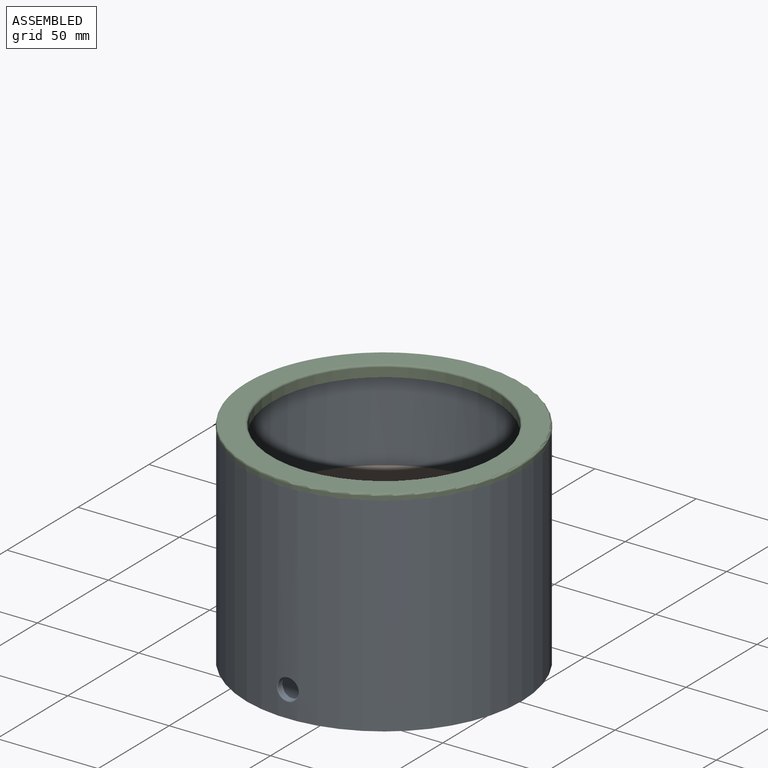
[diagram: assembled view]
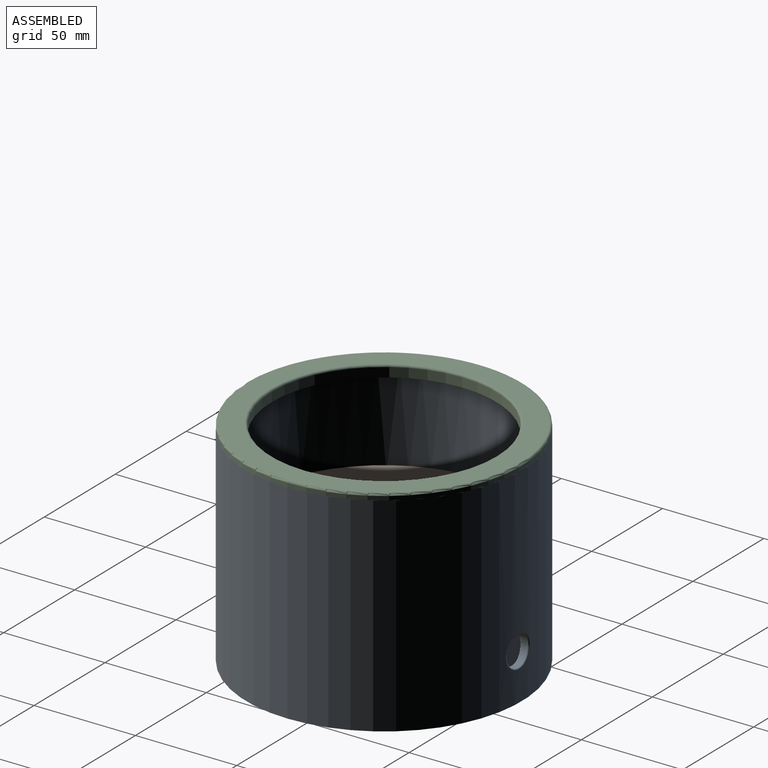
[diagram: assembled view, second angle]
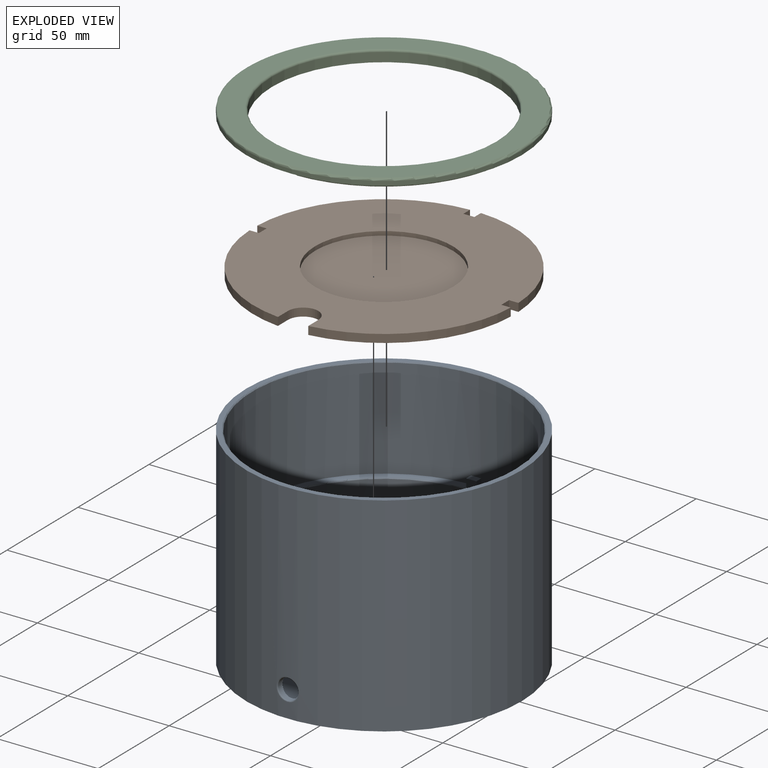
[diagram: exploded view]
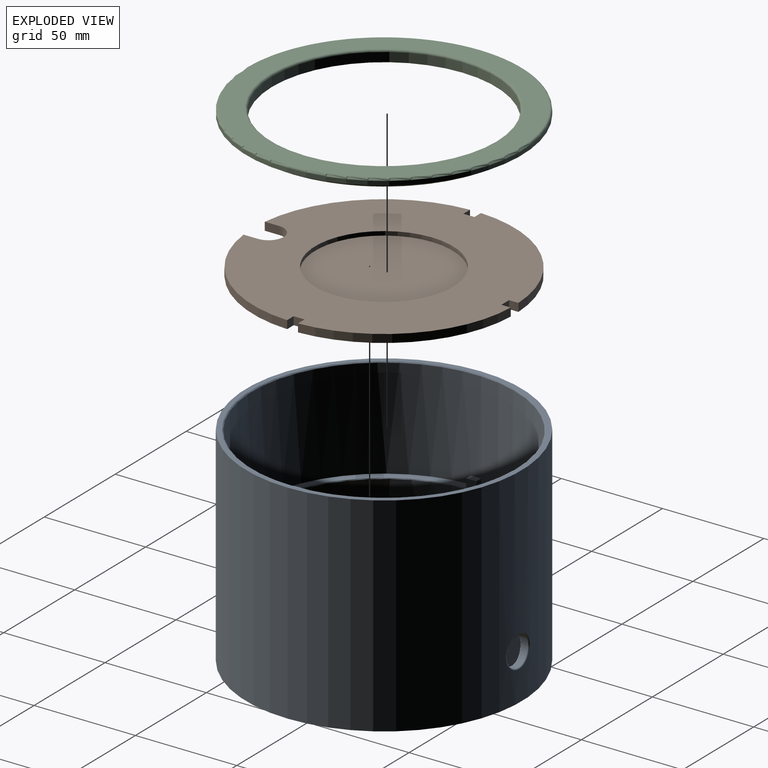
[diagram: exploded view, second angle]
ASSEMBLY  parts=3 mates=3
PART A: 53 faces, bbox 141.8x141.8x103 mm
  f0: plane 62.45x62.45mm, normal (0,0,1), area 326.4mm2, adj f5,f26,f30,f52
  f1: plane 62.45x62.45mm, normal (0,0,1), area 326.4mm2, adj f5,f28,f34,f52
  f2: plane 129.9x62.5mm, normal (0,0,1), area 670.1mm2, adj f5,f31,f36,f52
  f3: cylinder r=68mm len=136mm, axis (0,0,-1), area 43706.8mm2, adj f6,f7,f40,f42
  f4: cone r=65mm half-angle=4.6deg, axis (0,0,-1), area 19351.7mm2, adj f8,f41,f43,f52
  f5: cylinder r=65mm len=130mm, axis (0,0,-1), area 20156.1mm2, adj f0,f1,f2,f26,f28,f29,f30,f31
  f6: plane 136x136mm, normal (0,0,1), area 1048.5mm2, adj f3,f38
  f7: plane 136x136mm, normal (0,0,-1), area 14526.7mm2, adj f3
  f8: plane 130x130mm, normal (0,0,1), area 12857.8mm2, adj f4,f10,f13,f18,f21
  f9: cylinder r=3.75mm len=7.5mm, axis (0,0,-1), area 106mm2, adj f12,f51
  f10: cylinder r=5.75mm len=11.5mm, axis (0,0,-1), area 162.6mm2, adj f8,f50
  f11: plane 10.5x10.5mm, normal (0,0,1), area 29.8mm2, adj f50,f51
  f12: plane 7.5x7.5mm, normal (0,0,1), area 44.2mm2, adj f9
  f13: cylinder r=5.75mm len=11.5mm, axis (0,0,-1), area 162.6mm2, adj f8,f48
  f14: cylinder r=3.75mm len=7.5mm, axis (0,0,-1), area 106mm2, adj f16,f49
  f15: plane 10.5x10.5mm, normal (0,0,1), area 29.8mm2, adj f48,f49
  f16: plane 7.5x7.5mm, normal (0,0,1), area 44.2mm2, adj f14
  f17: cylinder r=3.75mm len=7.5mm, axis (0,0,-1), area 106mm2, adj f20,f47
  f18: cylinder r=5.75mm len=11.5mm, axis (0,0,-1), area 162.6mm2, adj f8,f46
  f19: plane 10.5x10.5mm, normal (0,0,1), area 29.8mm2, adj f46,f47
  f20: plane 7.5x7.5mm, normal (0,0,1), area 44.2mm2, adj f17
  f21: cylinder r=5.75mm len=11.5mm, axis (0,0,-1), area 162.6mm2, adj f8,f45
  f22: cylinder r=3.75mm len=7.5mm, axis (0,0,-1), area 106mm2, adj f24,f44
  f23: plane 10.5x10.5mm, normal (0,0,1), area 29.8mm2, adj f44,f45
  f24: plane 7.5x7.5mm, normal (0,0,1), area 44.2mm2, adj f22
  f25: cylinder r=5.03mm len=10.05mm, axis (0,1,0), area 88.5mm2, adj f42,f43
  f26: plane 4x3.46mm, normal (-1,0,0), area 13.8mm2, adj f0,f5,f27,f29
  f27: cylinder r=61.54mm len=5mm, axis (0,0,-1), area 20mm2, adj f26,f28,f29,f52
  f28: plane 4x3.46mm, normal (1,0,0), area 13.8mm2, adj f1,f5,f27,f29
  f29: plane 5x3.51mm, normal (0,0,1), area 17.3mm2, adj f5,f26,f27,f28
  f30: plane 4x3.46mm, normal (0,1,0), area 13.8mm2, adj f0,f5,f32,f33
  f31: plane 4x3.46mm, normal (0,-1,0), area 13.8mm2, adj f2,f5,f32,f33
  f32: cylinder r=61.54mm len=5mm, axis (0,0,-1), area 20mm2, adj f30,f31,f33,f52
  f33: plane 5x3.51mm, normal (0,0,1), area 17.3mm2, adj f5,f30,f31,f32
  f34: plane 4x3.46mm, normal (0,1,0), area 13.8mm2, adj f1,f5,f35,f37
  f35: cylinder r=61.54mm len=5mm, axis (0,0,-1), area 20mm2, adj f34,f36,f37,f52
  f36: plane 4x3.46mm, normal (0,-1,0), area 13.8mm2, adj f2,f5,f35,f37
  f37: plane 5x3.51mm, normal (0,0,1), area 17.3mm2, adj f5,f34,f35,f36
  f38: torus R=65.5mm, axis (0,0,1), area 321.7mm2, adj f5,f6
  f39: cylinder r=7.5mm len=15mm, axis (0,-1,0), area 170.3mm2, adj f40,f41
  f40: bspline ~16.13x16.02mm, area 39.4mm2, adj f3,f39
  f41: bspline ~16.02x15.89mm, area 36.4mm2, adj f4,f39
  f42: bspline ~11.15x11.05mm, area 26.4mm2, adj f3,f25
  f43: bspline ~11.06x10.98mm, area 25mm2, adj f4,f25
  f44: torus R=4.25mm, axis (0,0,1), area 19.4mm2, adj f22,f23
  f45: torus R=5.25mm, axis (0,0,1), area 27.5mm2, adj f21,f23
  f46: torus R=5.25mm, axis (0,0,1), area 27.5mm2, adj f18,f19
  f47: torus R=4.25mm, axis (0,0,1), area 19.4mm2, adj f17,f19
  f48: torus R=5.25mm, axis (0,0,1), area 27.5mm2, adj f13,f15
  f49: torus R=4.25mm, axis (0,0,1), area 19.4mm2, adj f14,f15
  f50: torus R=5.25mm, axis (0,0,1), area 27.5mm2, adj f10,f11
  f51: torus R=4.25mm, axis (0,0,1), area 19.4mm2, adj f9,f11
  f52: torus R=61.54mm, axis (0,0,-1), area 317.4mm2, adj f0,f1,f2,f4,f27,f32,f35
PART B: 20 faces, bbox 128.9x128.5x4 mm
  f0: cylinder r=64.5mm len=61.36mm, axis (0,0,-1), area 364.4mm2, adj f4,f5,f14,f17
  f1: cylinder r=64.5mm len=61.74mm, axis (0,0,-1), area 383.7mm2, adj f4,f5,f10,f15
  f2: cylinder r=64.5mm len=61.36mm, axis (0,0,-1), area 364.4mm2, adj f4,f5,f11,f19
  f3: cylinder r=64.5mm len=61.74mm, axis (0,0,-1), area 383.7mm2, adj f4,f5,f8,f13
  f4: plane 128.89x128.51mm, normal (0,0,-1), area 12795.3mm2, adj f0,f1,f2,f3,f8,f9,f10,f11
  f5: plane 128.89x128.51mm, normal (0,0,1), area 9163.6mm2, adj f0,f1,f2,f3,f6,f8,f9,f10
  f6: cylinder r=34mm len=68mm, axis (0,0,-1), area 427.3mm2, adj f5,f7
  f7: plane 68x68mm, normal (0,0,1), area 3631.7mm2, adj f6
  f8: plane 4.64x4mm, normal (-1,0,0), area 18.6mm2, adj f3,f4,f5,f9
  f9: plane 5.4x4mm, normal (0,-1,0), area 21.6mm2, adj f4,f5,f8,f10
  f10: plane 4.64x4mm, normal (1,0,0), area 18.6mm2, adj f1,f4,f5,f9
  f11: plane 4.64x4mm, normal (0,-1,0), area 18.6mm2, adj f2,f4,f5,f12
  f12: plane 5.4x4mm, normal (1,0,0), area 21.6mm2, adj f4,f5,f11,f13
  f13: plane 4.64x4mm, normal (0,1,0), area 18.6mm2, adj f3,f4,f5,f12
  f14: plane 4.64x4mm, normal (0,-1,0), area 18.6mm2, adj f0,f4,f5,f16
  f15: plane 4.64x4mm, normal (0,1,0), area 18.6mm2, adj f1,f4,f5,f16
  f16: plane 5.4x4mm, normal (-1,0,0), area 21.6mm2, adj f4,f5,f14,f15
  f17: plane 7.06x4mm, normal (1,0,0), area 28.2mm2, adj f0,f4,f5,f18
  f18: cylinder r=7.5mm len=15mm, axis (0,0,1), area 94.2mm2, adj f4,f5,f17,f19
  f19: plane 7.06x4mm, normal (-1,0,0), area 28.2mm2, adj f2,f4,f5,f18
PART C: 9 faces, bbox 147.2x147.2x5.5 mm
  f0: cylinder r=55.25mm len=110.5mm, axis (0,0,1), area 1562.2mm2, adj f5,f7
  f1: cylinder r=68mm len=136mm, axis (0,0,1), area 854.5mm2, adj f2,f8
  f2: plane 136x136mm, normal (0,0,-1), area 1456.9mm2, adj f1,f4
  f3: plane 134x134mm, normal (0,0,1), area 4162.4mm2, adj f7,f8
  f4: cylinder r=64.5mm len=129mm, axis (0,0,1), area 607.9mm2, adj f2,f6
  f5: plane 127x127mm, normal (0,0,-1), area 3077.8mm2, adj f0,f6
  f6: torus R=63.5mm, axis (0,0,-1), area 633mm2, adj f4,f5
  f7: torus R=56.25mm, axis (0,0,1), area 548.9mm2, adj f0,f3
  f8: torus R=67mm, axis (0,0,1), area 667.5mm2, adj f1,f3
PLACE A t=(39.37,-54.8,-30.58)mm
PLACE B rot(axis=(0,0,1),180deg) t=(39.37,-54.8,19.42)mm
PLACE C t=(39.37,-54.8,72.42)mm
MATE planar C.f1 <-> A.f3  axis (0,0,-1) through (39.37,-54.8,69.42)mm
MATE cylindrical B.f0 <-> A.f5  axis (0,0,-1) through (39.37,-54.8,21.42)mm
MATE planar B.f4 <-> A.f0  axis (0,0,-1) through (39.37,-54.03,19.42)mm
